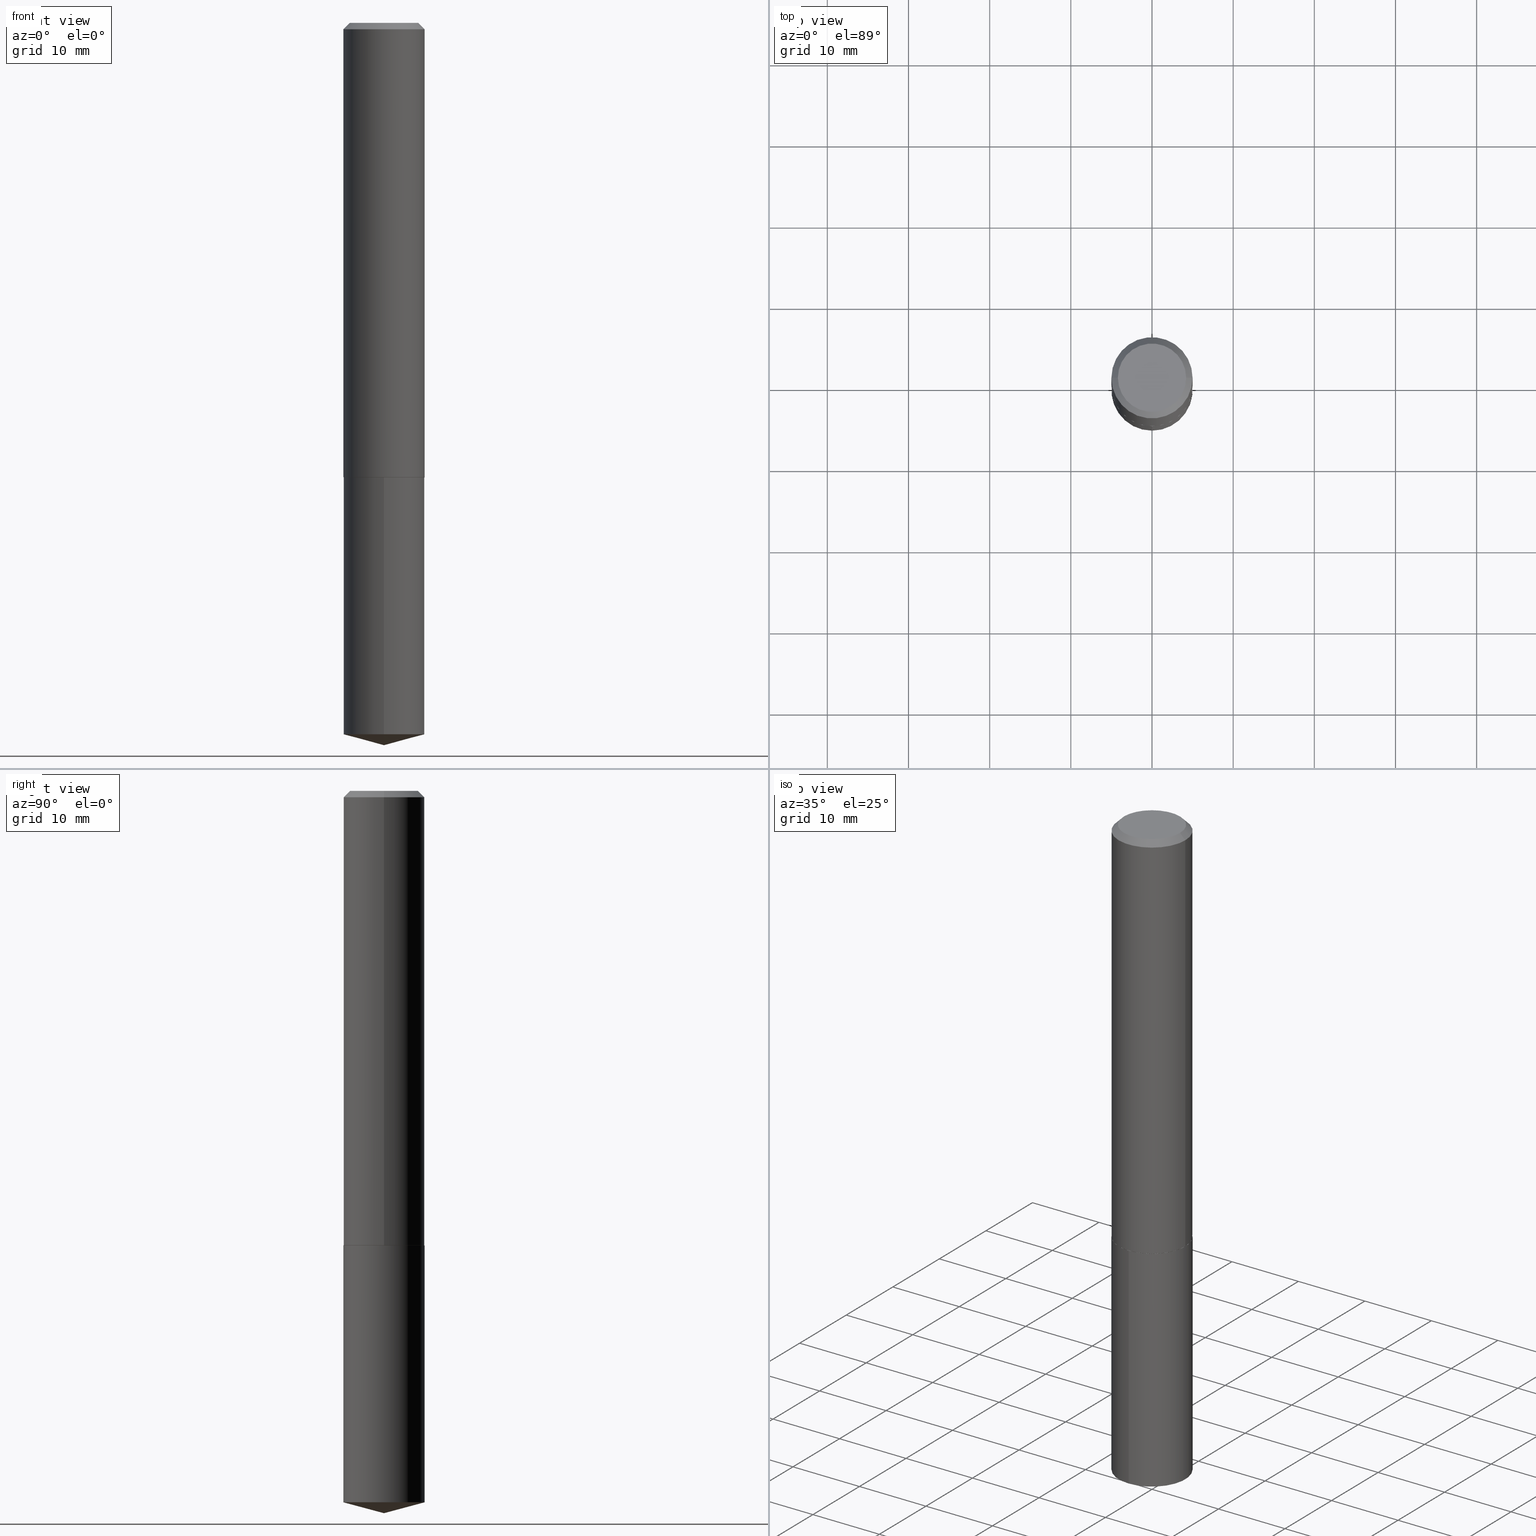
[diagram: canonical four-view strip — front | top / right | iso, engineering-drawing reading convention]
A machine part, canonical four-view strip (front | top / right | iso — engineering-drawing reading convention). The complete STEP part file that produces these views, byte-faithful:
ISO-10303-21;
HEADER;
FILE_DESCRIPTION (( 'STEP AP203' ),
    '1' );
FILE_NAME ('63026.STEP',
    '2024-04-23T07:59:37',
    ( '' ),
    ( '' ),
    'SwSTEP 2.0',
    'SolidWorks 2023',
    '' );
FILE_SCHEMA (( 'CONFIG_CONTROL_DESIGN' ));
ENDSEC;

DATA;
#1 = CC_DESIGN_SECURITY_CLASSIFICATION ( #53, ( #78 ) ) ;
#2 = CARTESIAN_POINT ( 'NONE',  ( 5.390302342593277355E-29, -7.695923167078060833E-15, -2.204199999999999715 ) ) ;
#3 = ORIENTED_EDGE ( 'NONE', *, *, #227, .T. ) ;
#4 = ORIENTED_EDGE ( 'NONE', *, *, #368, .T. ) ;
#5 = VECTOR ( 'NONE', #380, 39.37007874015748854 ) ;
#6 = ORIENTED_EDGE ( 'NONE', *, *, #203, .T. ) ;
#7 = EDGE_CURVE ( 'NONE', #103, #100, #42, .T. ) ;
#8 = DATE_TIME_ROLE ( 'creation_date' ) ;
#9 = EDGE_CURVE ( 'NONE', #365, #73, #378, .T. ) ;
#10 = FACE_OUTER_BOUND ( 'NONE', #137, .T. ) ;
#11 = AXIS2_PLACEMENT_3D ( 'NONE', #308, #235, #126 ) ;
#12 = EDGE_CURVE ( 'NONE', #100, #184, #363, .T. ) ;
#13 = PLANE ( 'NONE',  #244 ) ;
#14 = APPROVAL_ROLE ( '' ) ;
#15 = CLOSED_SHELL ( 'NONE', ( #102, #267, #130, #307, #50 ) ) ;
#16 = VECTOR ( 'NONE', #315, 39.37007874015748143 ) ;
#17 = CARTESIAN_POINT ( 'NONE',  ( 8.567679579714064896E-29, -1.223523147264573254E-14, -3.503899999999999793 ) ) ;
#18 = FACE_OUTER_BOUND ( 'NONE', #247, .T. ) ;
#19 = PERSON_AND_ORGANIZATION ( #176, #287 ) ;
#20 = ORIENTED_EDGE ( 'NONE', *, *, #157, .T. ) ;
#21 = CARTESIAN_POINT ( 'NONE',  ( 5.391525076996369035E-29, -7.697668907747481548E-15, -2.204699999999999438 ) ) ;
#22 = CIRCLE ( 'NONE', #86, 0.1968500000000002748 ) ;
#23 = DATE_AND_TIME ( #43, #75 ) ;
#24 = CARTESIAN_POINT ( 'NONE',  ( 5.391525076996369035E-29, -7.697668907747481548E-15, -2.204699999999999438 ) ) ;
#25 = CC_DESIGN_PERSON_AND_ORGANIZATION_ASSIGNMENT ( #149, #169, ( #53 ) ) ;
#26 = DIRECTION ( 'NONE',  ( -2.445183817949731968E-29, 3.491889458216768216E-15, 1.000000000000000000 ) ) ;
#27 = CARTESIAN_POINT ( 'NONE',  ( 7.642090019328607917E-31, -1.091087918388491006E-16, -0.03125000000000022898 ) ) ;
#28 = EDGE_LOOP ( 'NONE', ( #186, #65, #334, #221 ) ) ;
#29 =( NAMED_UNIT ( * ) PLANE_ANGLE_UNIT ( ) SI_UNIT ( $, .RADIAN. ) );
#30 = EDGE_CURVE ( 'NONE', #103, #367, #22, .T. ) ;
#31 = CARTESIAN_POINT ( 'NONE',  ( -0.1968500000000001360, 1.398703375343758182E-15, -9.682923725166790684E-30 ) ) ;
#32 = EDGE_LOOP ( 'NONE', ( #342, #276, #303, #274 ) ) ;
#33 = CARTESIAN_POINT ( 'NONE',  ( -0.1968500000000002748, -6.297219791734301467E-15, -2.204199999999999715 ) ) ;
#34 = ORIENTED_EDGE ( 'NONE', *, *, #376, .F. ) ;
#35 = EDGE_LOOP ( 'NONE', ( #183, #226, #34 ) ) ;
#36 = COORDINATED_UNIVERSAL_TIME_OFFSET ( 5, 0, .BEHIND. ) ;
#37 = CIRCLE ( 'NONE', #255, 0.1968500000000000250 ) ;
#38 = AXIS2_PLACEMENT_3D ( 'NONE', #24, #265, #120 ) ;
#39 = EDGE_CURVE ( 'NONE', #40, #367, #289, .T. ) ;
#40 = VERTEX_POINT ( 'NONE', #258 ) ;
#41 = LENGTH_MEASURE_WITH_UNIT ( LENGTH_MEASURE( 0.02539999999999999897 ), #277 );
#42 = LINE ( 'NONE', #166, #151 ) ;
#43 = CALENDAR_DATE ( 2024, 23, 4 ) ;
#44 = CARTESIAN_POINT ( 'NONE',  ( 0.1968500000000002748, -9.070519370180604019E-15, -2.204199999999999715 ) ) ;
#45 = PRODUCT_DEFINITION ( 'UNKNOWN', '', #78, #386 ) ;
#46 = CC_DESIGN_APPROVAL ( #71, ( #53 ) ) ;
#47 = DIRECTION ( 'NONE',  ( 1.000000000000000000, -6.982962677686264344E-15, 0.000000000000000000 ) ) ;
#48 = ORIENTED_EDGE ( 'NONE', *, *, #157, .F. ) ;
#49 = PERSON_AND_ORGANIZATION ( #176, #287 ) ;
#50 = ADVANCED_FACE ( 'NONE', ( #107 ), #13, .F. ) ;
#51 = AXIS2_PLACEMENT_3D ( 'NONE', #175, #330, #302 ) ;
#52 = COORDINATED_UNIVERSAL_TIME_OFFSET ( 5, 0, .BEHIND. ) ;
#53 = SECURITY_CLASSIFICATION ( '', '', #81 ) ;
#54 = CARTESIAN_POINT ( 'NONE',  ( 1.398703375343841801E-15, 0.1968499999999879790, -3.451154201469934790 ) ) ;
#55 = DIRECTION ( 'NONE',  ( 1.000000000000000000, -6.982962677686266711E-15, 4.876220105038334323E-29 ) ) ;
#56 = EDGE_CURVE ( 'NONE', #281, #100, #205, .T. ) ;
#57 = CARTESIAN_POINT ( 'NONE',  ( 5.391525076996369035E-29, -7.697668907747481548E-15, -2.204699999999999438 ) ) ;
#58 = VECTOR ( 'NONE', #150, 39.37007874015748143 ) ;
#59 = CIRCLE ( 'NONE', #270, 0.1963500000000007739 ) ;
#60 = CARTESIAN_POINT ( 'NONE',  ( 8.439334720246109226E-29, -1.205014919401034769E-14, -3.451154201469934346 ) ) ;
#61 = DIRECTION ( 'NONE',  ( 1.000000000000000000, -6.982962677686265922E-15, 0.000000000000000000 ) ) ;
#62 = EDGE_LOOP ( 'NONE', ( #123, #239, #202 ) ) ;
#63 = EDGE_LOOP ( 'NONE', ( #192, #109 ) ) ;
#64 = PERSON_AND_ORGANIZATION_ROLE ( 'creator' ) ;
#65 = ORIENTED_EDGE ( 'NONE', *, *, #108, .T. ) ;
#66 = AXIS2_PLACEMENT_3D ( 'NONE', #96, #306, #387 ) ;
#67 = ORIENTED_EDGE ( 'NONE', *, *, #181, .F. ) ;
#68 = APPLICATION_CONTEXT ( 'configuration controlled 3d designs of mechanical parts and assemblies' ) ;
#69 = DIRECTION ( 'NONE',  ( -6.982962677686265133E-15, -1.000000000000000000, 2.775563112689116301E-15 ) ) ;
#70 = VERTEX_POINT ( 'NONE', #17 ) ;
#71 = APPROVAL ( #292, 'UNSPECIFIED' ) ;
#72 = APPROVAL_DATE_TIME ( #220, #82 ) ;
#73 = VERTEX_POINT ( 'NONE', #145 ) ;
#74 = VECTOR ( 'NONE', #147, 39.37007874015748854 ) ;
#75 = LOCAL_TIME ( 3, 59, 37.00000000000000000, #125 ) ;
#76 = PRODUCT ( '63026', '63026', '', ( #369 ) ) ;
#77 = DIRECTION ( 'NONE',  ( -2.445183817949731968E-29, 3.491889458216768610E-15, 1.000000000000000000 ) ) ;
#78 = PRODUCT_DEFINITION_FORMATION_WITH_SPECIFIED_SOURCE ( 'ANY', '', #76, .NOT_KNOWN. ) ;
#79 = CARTESIAN_POINT ( 'NONE',  ( -0.1968500000000002748, -6.297219791734301467E-15, -2.204199999999999715 ) ) ;
#80 = VERTEX_POINT ( 'NONE', #110 ) ;
#81 = SECURITY_CLASSIFICATION_LEVEL ( 'unclassified' ) ;
#82 = APPROVAL ( #134, 'UNSPECIFIED' ) ;
#83 = DIRECTION ( 'NONE',  ( -2.445183817949731968E-29, 3.491889458216768216E-15, 1.000000000000000000 ) ) ;
#84 = ORIENTED_EDGE ( 'NONE', *, *, #12, .F. ) ;
#85 = LINE ( 'NONE', #44, #5 ) ;
#86 = AXIS2_PLACEMENT_3D ( 'NONE', #383, #253, #298 ) ;
#87 = VECTOR ( 'NONE', #136, 39.37007874015748143 ) ;
#88 = ORIENTED_EDGE ( 'NONE', *, *, #335, .F. ) ;
#89 = DIRECTION ( 'NONE',  ( 1.000000000000000000, -6.982962677686265922E-15, 0.000000000000000000 ) ) ;
#90 = CYLINDRICAL_SURFACE ( 'NONE', #256, 0.1968500000000000250 ) ;
#91 = APPLICATION_CONTEXT ( 'configuration controlled 3d designs of mechanical parts and assemblies' ) ;
#92 = MANIFOLD_SOLID_BREP ( 'Body-Move/Copy2[1]', #15 ) ;
#93 = DIRECTION ( 'NONE',  ( -2.438088387897960049E-29, 3.491481338843145188E-15, 1.000000000000000000 ) ) ;
#94 = CYLINDRICAL_SURFACE ( 'NONE', #66, 0.1968500000000001360 ) ;
#95 = FACE_OUTER_BOUND ( 'NONE', #97, .T. ) ;
#96 = CARTESIAN_POINT ( 'NONE',  ( 0.000000000000000000, 0.000000000000000000, 0.000000000000000000 ) ) ;
#97 = EDGE_LOOP ( 'NONE', ( #321, #179, #104, #3 ) ) ;
#98 = PERSON_AND_ORGANIZATION ( #176, #287 ) ;
#99 = MANIFOLD_SOLID_BREP ( 'Body-Move/Copy2[2]', #260 ) ;
#100 = VERTEX_POINT ( 'NONE', #201 ) ;
#101 = PERSON_AND_ORGANIZATION_ROLE ( 'design_owner' ) ;
#102 = ADVANCED_FACE ( 'NONE', ( #323 ), #293, .T. ) ;
#103 = VERTEX_POINT ( 'NONE', #115 ) ;
#104 = ORIENTED_EDGE ( 'NONE', *, *, #181, .T. ) ;
#105 = CALENDAR_DATE ( 2024, 23, 4 ) ;
#106 = VECTOR ( 'NONE', #299, 39.37007874015748854 ) ;
#107 = FACE_OUTER_BOUND ( 'NONE', #63, .T. ) ;
#108 = EDGE_CURVE ( 'NONE', #284, #73, #344, .T. ) ;
#109 = ORIENTED_EDGE ( 'NONE', *, *, #223, .T. ) ;
#110 = CARTESIAN_POINT ( 'NONE',  ( -0.1655999999999999972, 1.210933015344269141E-15, 1.206277097151870064E-18 ) ) ;
#111 = ORIENTED_EDGE ( 'NONE', *, *, #12, .T. ) ;
#112 = VECTOR ( 'NONE', #77, 39.37007874015748143 ) ;
#113 = CARTESIAN_POINT ( 'NONE',  ( -0.1968500000000000250, 1.265487411263692705E-15, -0.03125000000000022898 ) ) ;
#114 = CARTESIAN_POINT ( 'NONE',  ( 5.390302342593277355E-29, -7.695923167078060833E-15, -2.204199999999999715 ) ) ;
#115 = CARTESIAN_POINT ( 'NONE',  ( 0.1968500000000002748, -9.070519370180604019E-15, -2.204199999999999715 ) ) ;
#116 = FACE_OUTER_BOUND ( 'NONE', #196, .T. ) ;
#117 = APPROVAL ( #296, 'UNSPECIFIED' ) ;
#118 = AXIS2_PLACEMENT_3D ( 'NONE', #2, #209, #259 ) ;
#119 = FACE_OUTER_BOUND ( 'NONE', #62, .T. ) ;
#120 = DIRECTION ( 'NONE',  ( 1.000000000000000000, -6.982962677686262766E-15, 0.000000000000000000 ) ) ;
#121 = DIRECTION ( 'NONE',  ( -6.982962677686265133E-15, -1.000000000000000000, 4.163344669033674845E-15 ) ) ;
#122 = CONICAL_SURFACE ( 'NONE', #51, 0.1968500000000000250, 0.7853981633974447263 ) ;
#123 = ORIENTED_EDGE ( 'NONE', *, *, #262, .F. ) ;
#124 = AXIS2_PLACEMENT_3D ( 'NONE', #161, #371, #69 ) ;
#125 = COORDINATED_UNIVERSAL_TIME_OFFSET ( 5, 0, .BEHIND. ) ;
#126 = DIRECTION ( 'NONE',  ( 1.000000000000000000, -6.982962677686264344E-15, 0.000000000000000000 ) ) ;
#127 = EDGE_LOOP ( 'NONE', ( #159, #242, #314, #48 ) ) ;
#128 = LINE ( 'NONE', #31, #87 ) ;
#129 = ORIENTED_EDGE ( 'NONE', *, *, #223, .F. ) ;
#130 = ADVANCED_FACE ( 'NONE', ( #230 ), #295, .T. ) ;
#131 = EDGE_LOOP ( 'NONE', ( #88, #245 ) ) ;
#132 = AXIS2_PLACEMENT_3D ( 'NONE', #114, #228, #47 ) ;
#133 = CONICAL_SURFACE ( 'NONE', #263, 146.9311341562581674, 1.308996938995752535 ) ;
#134 = APPROVAL_STATUS ( 'not_yet_approved' ) ;
#135 = ORIENTED_EDGE ( 'NONE', *, *, #30, .T. ) ;
#136 = DIRECTION ( 'NONE',  ( -2.445468806185136877E-29, 3.491481338843145188E-15, 1.000000000000000000 ) ) ;
#137 = EDGE_LOOP ( 'NONE', ( #6, #290 ) ) ;
#138 = PERSON_AND_ORGANIZATION ( #176, #287 ) ;
#139 = CIRCLE ( 'NONE', #233, 0.1655999999999999972 ) ;
#140 = PLANE ( 'NONE',  #304 ) ;
#141 = DIRECTION ( 'NONE',  ( 2.445183817949731127E-29, -3.491889458216768610E-15, -1.000000000000000000 ) ) ;
#142 = LINE ( 'NONE', #113, #58 ) ;
#143 = ADVANCED_FACE ( 'NONE', ( #10 ), #140, .F. ) ;
#144 = APPROVAL_DATE_TIME ( #204, #71 ) ;
#145 = CARTESIAN_POINT ( 'NONE',  ( 1.398703375343841801E-15, 0.1968499999999923367, -2.204700000000000326 ) ) ;
#146 = APPROVAL_PERSON_ORGANIZATION ( #49, #71, #14 ) ;
#147 = DIRECTION ( 'NONE',  ( -0.7071067811862817853, 7.493145998869393328E-15, 0.7071067811868130271 ) ) ;
#148 = CARTESIAN_POINT ( 'NONE',  ( -8.769877155356317624E-28, 1.252416312300573056E-13, 35.86617874015747987 ) ) ;
#149 = PERSON_AND_ORGANIZATION ( #176, #287 ) ;
#150 = DIRECTION ( 'NONE',  ( -0.7071067811865450192, 2.468850131082230634E-15, -0.7071067811865500152 ) ) ;
#151 = VECTOR ( 'NONE', #283, 39.37007874015748143 ) ;
#152 = CC_DESIGN_APPROVAL ( #117, ( #78 ) ) ;
#153 = AXIS2_PLACEMENT_3D ( 'NONE', #234, #93, #208 ) ;
#154 = DIRECTION ( 'NONE',  ( -2.445468806185136597E-29, 3.491481338843145583E-15, 1.000000000000000000 ) ) ;
#155 = ADVANCED_BREP_SHAPE_REPRESENTATION ( '63026', ( #92, #99, #385 ), #167 ) ;
#156 = LINE ( 'NONE', #357, #364 ) ;
#157 = EDGE_CURVE ( 'NONE', #206, #103, #85, .T. ) ;
#158 = CARTESIAN_POINT ( 'NONE',  ( 7.642090019328607917E-31, -1.091087918388491006E-16, -0.03125000000000022898 ) ) ;
#159 = ORIENTED_EDGE ( 'NONE', *, *, #335, .T. ) ;
#160 = CC_DESIGN_PERSON_AND_ORGANIZATION_ASSIGNMENT ( #193, #64, ( #45 ) ) ;
#161 = CARTESIAN_POINT ( 'NONE',  ( 8.439334720246109226E-29, -1.205014919401034769E-14, -3.451154201469934346 ) ) ;
#162 = CARTESIAN_POINT ( 'NONE',  ( 0.000000000000000000, 0.000000000000000000, 0.000000000000000000 ) ) ;
#163 = ORIENTED_EDGE ( 'NONE', *, *, #319, .T. ) ;
#164 = AXIS2_PLACEMENT_3D ( 'NONE', #27, #389, #388 ) ;
#165 = COORDINATED_UNIVERSAL_TIME_OFFSET ( 5, 0, .BEHIND. ) ;
#166 = CARTESIAN_POINT ( 'NONE',  ( 0.1968500000000001360, -1.374596203102542594E-15, 9.598753983154306463E-30 ) ) ;
#167 =( GEOMETRIC_REPRESENTATION_CONTEXT ( 3 ) GLOBAL_UNCERTAINTY_ASSIGNED_CONTEXT ( ( #353 ) ) GLOBAL_UNIT_ASSIGNED_CONTEXT ( ( #336, #29, #189 ) ) REPRESENTATION_CONTEXT ( 'NONE', 'WORKASPACE' ) );
#168 = ADVANCED_FACE ( 'NONE', ( #222 ), #352, .T. ) ;
#169 = PERSON_AND_ORGANIZATION_ROLE ( 'classification_officer' ) ;
#170 = CARTESIAN_POINT ( 'NONE',  ( 5.391525076996369035E-29, -7.697668907747481548E-15, -2.204699999999999438 ) ) ;
#171 = CONICAL_SURFACE ( 'NONE', #164, 0.1968500000000000250, 0.7853981633974447263 ) ;
#172 = LINE ( 'NONE', #232, #106 ) ;
#173 = PERSON_AND_ORGANIZATION ( #176, #287 ) ;
#174 = PRODUCT_RELATED_PRODUCT_CATEGORY ( 'detail', '', ( #76 ) ) ;
#175 = CARTESIAN_POINT ( 'NONE',  ( 7.642090019328607917E-31, -1.091087918388491006E-16, -0.03125000000000022898 ) ) ;
#176 = PERSON ( 'UNSPECIFIED', 'UNSPECIFIED', 'UNSPECIFIED', ('UNSPECIFIED'), ('UNSPECIFIED'), ('UNSPECIFIED') ) ;
#177 = DIRECTION ( 'NONE',  ( -2.445468806185136597E-29, 3.491481338843145583E-15, 1.000000000000000000 ) ) ;
#178 = AXIS2_PLACEMENT_3D ( 'NONE', #251, #199, #285 ) ;
#179 = ORIENTED_EDGE ( 'NONE', *, *, #203, .F. ) ;
#180 = FACE_OUTER_BOUND ( 'NONE', #32, .T. ) ;
#181 = EDGE_CURVE ( 'NONE', #80, #184, #142, .T. ) ;
#182 = CARTESIAN_POINT ( 'NONE',  ( -0.1968500000000000250, -2.503812604114695601E-15, -0.03125000000000022898 ) ) ;
#183 = ORIENTED_EDGE ( 'NONE', *, *, #294, .F. ) ;
#184 = VERTEX_POINT ( 'NONE', #182 ) ;
#185 = CONICAL_SURFACE ( 'NONE', #11, 0.1968500000000002748, 0.7853981633970726906 ) ;
#186 = ORIENTED_EDGE ( 'NONE', *, *, #197, .T. ) ;
#187 = ADVANCED_FACE ( 'NONE', ( #18 ), #185, .T. ) ;
#188 = APPROVAL_PERSON_ORGANIZATION ( #138, #117, #229 ) ;
#189 =( NAMED_UNIT ( * ) SI_UNIT ( $, .STERADIAN. ) SOLID_ANGLE_UNIT ( ) );
#190 = ORIENTED_EDGE ( 'NONE', *, *, #39, .F. ) ;
#191 = FACE_OUTER_BOUND ( 'NONE', #271, .T. ) ;
#192 = ORIENTED_EDGE ( 'NONE', *, *, #9, .T. ) ;
#193 = PERSON_AND_ORGANIZATION ( #176, #287 ) ;
#194 = ADVANCED_FACE ( 'NONE', ( #266 ), #171, .T. ) ;
#195 = PRODUCT_DEFINITION_SHAPE ( 'NONE', 'NONE',  #45 ) ;
#196 = EDGE_LOOP ( 'NONE', ( #317, #217, #4, #129 ) ) ;
#197 = EDGE_CURVE ( 'NONE', #249, #284, #37, .T. ) ;
#198 = AXIS2_PLACEMENT_3D ( 'NONE', #355, #348, #89 ) ;
#199 = DIRECTION ( 'NONE',  ( -2.445183817949731968E-29, 3.491889458216768216E-15, 1.000000000000000000 ) ) ;
#200 = DATE_AND_TIME ( #346, #326 ) ;
#201 = CARTESIAN_POINT ( 'NONE',  ( 0.1968500000000000250, -1.483704994941390709E-15, -0.03125000000000022898 ) ) ;
#202 = ORIENTED_EDGE ( 'NONE', *, *, #197, .F. ) ;
#203 = EDGE_CURVE ( 'NONE', #80, #281, #316, .T. ) ;
#204 = DATE_AND_TIME ( #381, #297 ) ;
#205 = LINE ( 'NONE', #224, #231 ) ;
#206 = VERTEX_POINT ( 'NONE', #331 ) ;
#207 = CARTESIAN_POINT ( 'NONE',  ( 5.391525076996369035E-29, -7.697668907747481548E-15, -2.204699999999999438 ) ) ;
#208 = DIRECTION ( 'NONE',  ( 1.000000000000000000, -6.982962677686265922E-15, 4.876176775795935793E-29 ) ) ;
#209 = DIRECTION ( 'NONE',  ( -2.445468806185136597E-29, 3.491481338843145583E-15, 1.000000000000000000 ) ) ;
#210 = CIRCLE ( 'NONE', #124, 0.1968500000000000250 ) ;
#211 = CARTESIAN_POINT ( 'NONE',  ( -2.949913012720698115E-47, 4.211693974208535336E-33, 1.206277097160147711E-18 ) ) ;
#212 = DIRECTION ( 'NONE',  ( 0.000000000000000000, 0.000000000000000000, 1.000000000000000000 ) ) ;
#213 = CC_DESIGN_PERSON_AND_ORGANIZATION_ASSIGNMENT ( #173, #324, ( #78 ) ) ;
#214 = EDGE_LOOP ( 'NONE', ( #337, #339, #111, #67 ) ) ;
#215 = LOCAL_TIME ( 3, 59, 37.00000000000000000, #165 ) ;
#216 = LINE ( 'NONE', #248, #16 ) ;
#217 = ORIENTED_EDGE ( 'NONE', *, *, #376, .T. ) ;
#218 = APPLICATION_PROTOCOL_DEFINITION ( 'international standard', 'config_control_design', 1994, #91 ) ;
#219 = ADVANCED_FACE ( 'NONE', ( #95 ), #122, .T. ) ;
#220 = DATE_AND_TIME ( #105, #215 ) ;
#221 = ORIENTED_EDGE ( 'NONE', *, *, #368, .F. ) ;
#222 = FACE_OUTER_BOUND ( 'NONE', #127, .T. ) ;
#223 = EDGE_CURVE ( 'NONE', #73, #365, #359, .T. ) ;
#224 = CARTESIAN_POINT ( 'NONE',  ( 0.1968500000000000250, -1.459597822700175121E-15, -0.03125000000000022898 ) ) ;
#225 = CIRCLE ( 'NONE', #38, 0.1963500000000007739 ) ;
#226 = ORIENTED_EDGE ( 'NONE', *, *, #262, .T. ) ;
#227 = EDGE_CURVE ( 'NONE', #184, #100, #269, .T. ) ;
#228 = DIRECTION ( 'NONE',  ( -2.445468806185136597E-29, 3.491481338843145583E-15, 1.000000000000000000 ) ) ;
#229 = APPROVAL_ROLE ( '' ) ;
#230 = FACE_OUTER_BOUND ( 'NONE', #35, .T. ) ;
#231 = VECTOR ( 'NONE', #375, 39.37007874015748143 ) ;
#232 = CARTESIAN_POINT ( 'NONE',  ( 8.568947225975817963E-29, -1.223343191107968170E-14, -3.503899999999999793 ) ) ;
#233 = AXIS2_PLACEMENT_3D ( 'NONE', #318, #362, #243 ) ;
#234 = CARTESIAN_POINT ( 'NONE',  ( 5.391525076996369035E-29, -7.697668907747481548E-15, -2.204699999999999438 ) ) ;
#235 = DIRECTION ( 'NONE',  ( -2.445468806185136597E-29, 3.491481338843145583E-15, 1.000000000000000000 ) ) ;
#236 = DIRECTION ( 'NONE',  ( -2.445183817949731968E-29, 3.491889458216768216E-15, 1.000000000000000000 ) ) ;
#237 = APPROVAL_PERSON_ORGANIZATION ( #313, #82, #338 ) ;
#238 = FACE_OUTER_BOUND ( 'NONE', #131, .T. ) ;
#239 = ORIENTED_EDGE ( 'NONE', *, *, #294, .T. ) ;
#240 = DIMENSIONAL_EXPONENTS ( 1.000000000000000000, 0.000000000000000000, 0.000000000000000000, 0.000000000000000000, 0.000000000000000000, 0.000000000000000000, 0.000000000000000000 ) ;
#241 = ADVANCED_FACE ( 'NONE', ( #180 ), #94, .T. ) ;
#242 = ORIENTED_EDGE ( 'NONE', *, *, #39, .T. ) ;
#243 = DIRECTION ( 'NONE',  ( 1.000000000000000000, -6.982962677686266711E-15, 4.876220105038334323E-29 ) ) ;
#244 = AXIS2_PLACEMENT_3D ( 'NONE', #170, #141, #252 ) ;
#245 = ORIENTED_EDGE ( 'NONE', *, *, #319, .F. ) ;
#246 = CYLINDRICAL_SURFACE ( 'NONE', #310, 0.1968500000000001360 ) ;
#247 = EDGE_LOOP ( 'NONE', ( #190, #163, #20, #279 ) ) ;
#248 = CARTESIAN_POINT ( 'NONE',  ( -1.374596203102487571E-15, -0.1968500000000076855, -2.204699999999998550 ) ) ;
#249 = VERTEX_POINT ( 'NONE', #360 ) ;
#250 = CARTESIAN_POINT ( 'NONE',  ( 0.000000000000000000, 0.000000000000000000, 0.000000000000000000 ) ) ;
#251 = CARTESIAN_POINT ( 'NONE',  ( -8.769877155356317624E-28, 1.252416312300573056E-13, 35.86617874015747987 ) ) ;
#252 = DIRECTION ( 'NONE',  ( 6.982962677686265922E-15, 1.000000000000000000, -3.491889458216768610E-15 ) ) ;
#253 = DIRECTION ( 'NONE',  ( -2.445468806185136597E-29, 3.491481338843145583E-15, 1.000000000000000000 ) ) ;
#254 = SHAPE_DEFINITION_REPRESENTATION ( #195, #155 ) ;
#255 = AXIS2_PLACEMENT_3D ( 'NONE', #60, #236, #268 ) ;
#256 = AXIS2_PLACEMENT_3D ( 'NONE', #207, #329, #328 ) ;
#257 = DIRECTION ( 'NONE',  ( -6.982962677686265133E-15, -1.000000000000000000, 4.163344669033674845E-15 ) ) ;
#258 = CARTESIAN_POINT ( 'NONE',  ( -0.1963500000000007739, -6.299869018908410302E-15, -2.204699999999999438 ) ) ;
#259 = DIRECTION ( 'NONE',  ( 1.000000000000000000, -6.982962677686264344E-15, 0.000000000000000000 ) ) ;
#260 = CLOSED_SHELL ( 'NONE', ( #194, #341, #168, #278, #187, #241, #219, #143 ) ) ;
#261 = DIRECTION ( 'NONE',  ( -2.445468806185136597E-29, 3.491481338843145583E-15, 1.000000000000000000 ) ) ;
#262 = EDGE_CURVE ( 'NONE', #70, #249, #156, .T. ) ;
#263 = AXIS2_PLACEMENT_3D ( 'NONE', #148, #358, #384 ) ;
#264 = ORIENTED_EDGE ( 'NONE', *, *, #7, .F. ) ;
#265 = DIRECTION ( 'NONE',  ( -2.445468806185136597E-29, 3.491481338843145583E-15, 1.000000000000000000 ) ) ;
#266 = FACE_OUTER_BOUND ( 'NONE', #214, .T. ) ;
#267 = ADVANCED_FACE ( 'NONE', ( #119 ), #133, .T. ) ;
#268 = DIRECTION ( 'NONE',  ( -6.982962677686265133E-15, -1.000000000000000000, 2.775563112689116301E-15 ) ) ;
#269 = CIRCLE ( 'NONE', #325, 0.1968500000000000250 ) ;
#270 = AXIS2_PLACEMENT_3D ( 'NONE', #57, #177, #305 ) ;
#271 = EDGE_LOOP ( 'NONE', ( #135, #311, #84, #264 ) ) ;
#272 = EDGE_CURVE ( 'NONE', #367, #103, #333, .T. ) ;
#273 = APPLICATION_PROTOCOL_DEFINITION ( 'international standard', 'config_control_design', 1994, #68 ) ;
#274 = ORIENTED_EDGE ( 'NONE', *, *, #227, .F. ) ;
#275 = CARTESIAN_POINT ( 'NONE',  ( -1.374596203102487571E-15, -0.1968500000000076855, -2.204699999999998550 ) ) ;
#276 = ORIENTED_EDGE ( 'NONE', *, *, #272, .T. ) ;
#277 =( LENGTH_UNIT ( ) NAMED_UNIT ( * ) SI_UNIT ( $, .METRE. ) );
#278 = ADVANCED_FACE ( 'NONE', ( #238 ), #354, .F. ) ;
#279 = ORIENTED_EDGE ( 'NONE', *, *, #272, .F. ) ;
#280 = DIRECTION ( 'NONE',  ( -2.445468806185136597E-29, 3.491481338843145583E-15, 1.000000000000000000 ) ) ;
#281 = VERTEX_POINT ( 'NONE', #361 ) ;
#282 = DATE_AND_TIME ( #340, #379 ) ;
#283 = DIRECTION ( 'NONE',  ( -2.445468806185136877E-29, 3.491481338843145188E-15, 1.000000000000000000 ) ) ;
#284 = VERTEX_POINT ( 'NONE', #54 ) ;
#285 = DIRECTION ( 'NONE',  ( -6.982962677686265922E-15, -1.000000000000000000, 3.510303681827565097E-15 ) ) ;
#286 = AXIS2_PLACEMENT_3D ( 'NONE', #21, #26, #121 ) ;
#287 = ORGANIZATION ( 'UNSPECIFIED', 'UNSPECIFIED', '' ) ;
#288 = CC_DESIGN_PERSON_AND_ORGANIZATION_ASSIGNMENT ( #98, #101, ( #76 ) ) ;
#289 = LINE ( 'NONE', #79, #74 ) ;
#290 = ORIENTED_EDGE ( 'NONE', *, *, #356, .T. ) ;
#291 = CARTESIAN_POINT ( 'NONE',  ( 1.398703375343810839E-15, 0.1968499999999923367, -2.204700000000000326 ) ) ;
#292 = APPROVAL_STATUS ( 'not_yet_approved' ) ;
#293 = CYLINDRICAL_SURFACE ( 'NONE', #309, 0.1968500000000000250 ) ;
#294 = EDGE_CURVE ( 'NONE', #70, #284, #172, .T. ) ;
#295 = CONICAL_SURFACE ( 'NONE', #178, 146.9311341562581674, 1.308996938995752535 ) ;
#296 = APPROVAL_STATUS ( 'not_yet_approved' ) ;
#297 = LOCAL_TIME ( 3, 59, 37.00000000000000000, #52 ) ;
#298 = DIRECTION ( 'NONE',  ( 1.000000000000000000, -6.982962677686264344E-15, 0.000000000000000000 ) ) ;
#299 = DIRECTION ( 'NONE',  ( 6.863315791527702148E-15, 0.9659258262890705327, 0.2588190451025121908 ) ) ;
#300 = DIRECTION ( 'NONE',  ( -6.982962677686265133E-15, -1.000000000000000000, 4.163344669033674845E-15 ) ) ;
#301 = CC_DESIGN_DATE_AND_TIME_ASSIGNMENT ( #282, #8, ( #45 ) ) ;
#302 = DIRECTION ( 'NONE',  ( -1.000000000000000000, 6.982962677686265922E-15, 0.000000000000000000 ) ) ;
#303 = ORIENTED_EDGE ( 'NONE', *, *, #7, .T. ) ;
#304 = AXIS2_PLACEMENT_3D ( 'NONE', #373, #320, #351 ) ;
#305 = DIRECTION ( 'NONE',  ( 1.000000000000000000, -6.982962677686262766E-15, 0.000000000000000000 ) ) ;
#306 = DIRECTION ( 'NONE',  ( -2.445468806185136597E-29, 3.491481338843145583E-15, 1.000000000000000000 ) ) ;
#307 = ADVANCED_FACE ( 'NONE', ( #116 ), #90, .T. ) ;
#308 = CARTESIAN_POINT ( 'NONE',  ( 5.390302342593277355E-29, -7.695923167078060833E-15, -2.204199999999999715 ) ) ;
#309 = AXIS2_PLACEMENT_3D ( 'NONE', #350, #382, #257 ) ;
#310 = AXIS2_PLACEMENT_3D ( 'NONE', #162, #280, #366 ) ;
#311 = ORIENTED_EDGE ( 'NONE', *, *, #343, .T. ) ;
#312 = CC_DESIGN_PERSON_AND_ORGANIZATION_ASSIGNMENT ( #19, #377, ( #78 ) ) ;
#313 = PERSON_AND_ORGANIZATION ( #176, #287 ) ;
#314 = ORIENTED_EDGE ( 'NONE', *, *, #30, .F. ) ;
#315 = DIRECTION ( 'NONE',  ( -2.445183817949731968E-29, 3.491889458216768610E-15, 1.000000000000000000 ) ) ;
#316 = CIRCLE ( 'NONE', #390, 0.1655999999999999972 ) ;
#317 = ORIENTED_EDGE ( 'NONE', *, *, #108, .F. ) ;
#318 = CARTESIAN_POINT ( 'NONE',  ( -2.949913012720698115E-47, 4.211693974208535336E-33, 1.206277097160147711E-18 ) ) ;
#319 = EDGE_CURVE ( 'NONE', #40, #206, #59, .T. ) ;
#320 = DIRECTION ( 'NONE',  ( 2.438088387897960049E-29, -3.491481338843145188E-15, -1.000000000000000000 ) ) ;
#321 = ORIENTED_EDGE ( 'NONE', *, *, #56, .F. ) ;
#322 = DATE_TIME_ROLE ( 'classification_date' ) ;
#323 = FACE_OUTER_BOUND ( 'NONE', #28, .T. ) ;
#324 = PERSON_AND_ORGANIZATION_ROLE ( 'creator' ) ;
#325 = AXIS2_PLACEMENT_3D ( 'NONE', #158, #261, #61 ) ;
#326 = LOCAL_TIME ( 3, 59, 37.00000000000000000, #349 ) ;
#327 = DIRECTION ( 'NONE',  ( -6.745023994389847810E-15, -0.9659258262890687563, 0.2588190451025189631 ) ) ;
#328 = DIRECTION ( 'NONE',  ( -6.982962677686265133E-15, -1.000000000000000000, 4.163344669033674845E-15 ) ) ;
#329 = DIRECTION ( 'NONE',  ( -2.445183817949731968E-29, 3.491889458216768216E-15, 1.000000000000000000 ) ) ;
#330 = DIRECTION ( 'NONE',  ( 2.445468806185136597E-29, -3.491481338843145583E-15, -1.000000000000000000 ) ) ;
#331 = CARTESIAN_POINT ( 'NONE',  ( 0.1963500000000007739, -9.068773629511184882E-15, -2.204699999999999438 ) ) ;
#332 = DIRECTION ( 'NONE',  ( 1.000000000000000000, 0.000000000000000000, 0.000000000000000000 ) ) ;
#333 = CIRCLE ( 'NONE', #118, 0.1968500000000002748 ) ;
#334 = ORIENTED_EDGE ( 'NONE', *, *, #9, .F. ) ;
#335 = EDGE_CURVE ( 'NONE', #206, #40, #225, .T. ) ;
#336 =( CONVERSION_BASED_UNIT ( 'INCH', #41 ) LENGTH_UNIT ( ) NAMED_UNIT ( #240 ) );
#337 = ORIENTED_EDGE ( 'NONE', *, *, #356, .F. ) ;
#338 = APPROVAL_ROLE ( '' ) ;
#339 = ORIENTED_EDGE ( 'NONE', *, *, #56, .T. ) ;
#340 = CALENDAR_DATE ( 2024, 23, 4 ) ;
#341 = ADVANCED_FACE ( 'NONE', ( #191 ), #246, .T. ) ;
#342 = ORIENTED_EDGE ( 'NONE', *, *, #343, .F. ) ;
#343 = EDGE_CURVE ( 'NONE', #367, #184, #128, .T. ) ;
#344 = LINE ( 'NONE', #291, #112 ) ;
#345 = AXIS2_PLACEMENT_3D ( 'NONE', #374, #83, #300 ) ;
#346 = CALENDAR_DATE ( 2024, 23, 4 ) ;
#347 = CC_DESIGN_DATE_AND_TIME_ASSIGNMENT ( #200, #322, ( #53 ) ) ;
#348 = DIRECTION ( 'NONE',  ( -2.445468806185136597E-29, 3.491481338843145583E-15, 1.000000000000000000 ) ) ;
#349 = COORDINATED_UNIVERSAL_TIME_OFFSET ( 5, 0, .BEHIND. ) ;
#350 = CARTESIAN_POINT ( 'NONE',  ( 5.391525076996369035E-29, -7.697668907747481548E-15, -2.204699999999999438 ) ) ;
#351 = DIRECTION ( 'NONE',  ( -1.000000000000000000, 6.982962677686265922E-15, -4.876176775795935793E-29 ) ) ;
#352 = CONICAL_SURFACE ( 'NONE', #132, 0.1968500000000002748, 0.7853981633970726906 ) ;
#353 = UNCERTAINTY_MEASURE_WITH_UNIT (LENGTH_MEASURE( 1.000000000000000082E-05 ), #336, 'distance_accuracy_value', 'NONE');
#354 = PLANE ( 'NONE',  #153 ) ;
#355 = CARTESIAN_POINT ( 'NONE',  ( 7.642090019328607917E-31, -1.091087918388491006E-16, -0.03125000000000022898 ) ) ;
#356 = EDGE_CURVE ( 'NONE', #281, #80, #139, .T. ) ;
#357 = CARTESIAN_POINT ( 'NONE',  ( 8.567679579714066017E-29, -1.223523147264573570E-14, -3.503899999999999793 ) ) ;
#358 = DIRECTION ( 'NONE',  ( -2.445183817949731968E-29, 3.491889458216768216E-15, 1.000000000000000000 ) ) ;
#359 = CIRCLE ( 'NONE', #286, 0.1968500000000000250 ) ;
#360 = CARTESIAN_POINT ( 'NONE',  ( -1.374596203102457200E-15, -0.1968500000000120709, -3.451154201469933902 ) ) ;
#361 = CARTESIAN_POINT ( 'NONE',  ( 0.1655999999999999972, -1.297848145565570390E-15, 1.206277097168728884E-18 ) ) ;
#362 = DIRECTION ( 'NONE',  ( -2.445468806185136597E-29, 3.491481338843145583E-15, 1.000000000000000000 ) ) ;
#363 = CIRCLE ( 'NONE', #198, 0.1968500000000000250 ) ;
#364 = VECTOR ( 'NONE', #327, 39.37007874015748854 ) ;
#365 = VERTEX_POINT ( 'NONE', #275 ) ;
#366 = DIRECTION ( 'NONE',  ( 1.000000000000000000, -6.982962677686266711E-15, 4.876176775795935793E-29 ) ) ;
#367 = VERTEX_POINT ( 'NONE', #33 ) ;
#368 = EDGE_CURVE ( 'NONE', #249, #365, #216, .T. ) ;
#369 = MECHANICAL_CONTEXT ( 'NONE', #91, 'mechanical' ) ;
#370 = APPROVAL_DATE_TIME ( #23, #117 ) ;
#371 = DIRECTION ( 'NONE',  ( -2.445183817949731968E-29, 3.491889458216768216E-15, 1.000000000000000000 ) ) ;
#372 = CC_DESIGN_APPROVAL ( #82, ( #45 ) ) ;
#373 = CARTESIAN_POINT ( 'NONE',  ( -1.474956506360349058E-47, 2.105846987104267668E-33, 6.031385485800738553E-19 ) ) ;
#374 = CARTESIAN_POINT ( 'NONE',  ( 5.391525076996369035E-29, -7.697668907747481548E-15, -2.204699999999999438 ) ) ;
#375 = DIRECTION ( 'NONE',  ( 0.7071067811865450192, -7.319954787623246579E-15, -0.7071067811865500152 ) ) ;
#376 = EDGE_CURVE ( 'NONE', #284, #249, #210, .T. ) ;
#377 = PERSON_AND_ORGANIZATION_ROLE ( 'design_supplier' ) ;
#378 = CIRCLE ( 'NONE', #345, 0.1968500000000000250 ) ;
#379 = LOCAL_TIME ( 3, 59, 37.00000000000000000, #36 ) ;
#380 = DIRECTION ( 'NONE',  ( 0.7071067811862817853, -2.468850131079474354E-15, 0.7071067811868130271 ) ) ;
#381 = CALENDAR_DATE ( 2024, 23, 4 ) ;
#382 = DIRECTION ( 'NONE',  ( -2.445183817949731968E-29, 3.491889458216768216E-15, 1.000000000000000000 ) ) ;
#383 = CARTESIAN_POINT ( 'NONE',  ( 5.390302342593277355E-29, -7.695923167078060833E-15, -2.204199999999999715 ) ) ;
#384 = DIRECTION ( 'NONE',  ( -6.982962677686265922E-15, -1.000000000000000000, 3.510303681827565097E-15 ) ) ;
#385 = AXIS2_PLACEMENT_3D ( 'NONE', #250, #212, #332 ) ;
#386 = DESIGN_CONTEXT ( 'detailed design', #68, 'design' ) ;
#387 = DIRECTION ( 'NONE',  ( 1.000000000000000000, -6.982962677686266711E-15, 4.876176775795935793E-29 ) ) ;
#388 = DIRECTION ( 'NONE',  ( -1.000000000000000000, 6.982962677686265922E-15, 0.000000000000000000 ) ) ;
#389 = DIRECTION ( 'NONE',  ( 2.445468806185136597E-29, -3.491481338843145583E-15, -1.000000000000000000 ) ) ;
#390 = AXIS2_PLACEMENT_3D ( 'NONE', #211, #154, #55 ) ;
ENDSEC;
END-ISO-10303-21;
